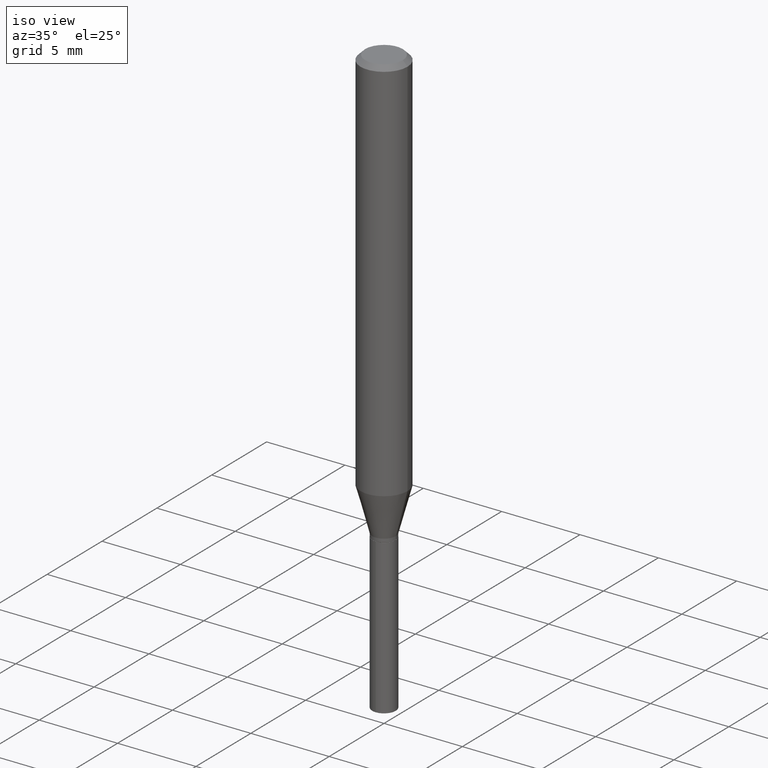
[diagram: clean part render]
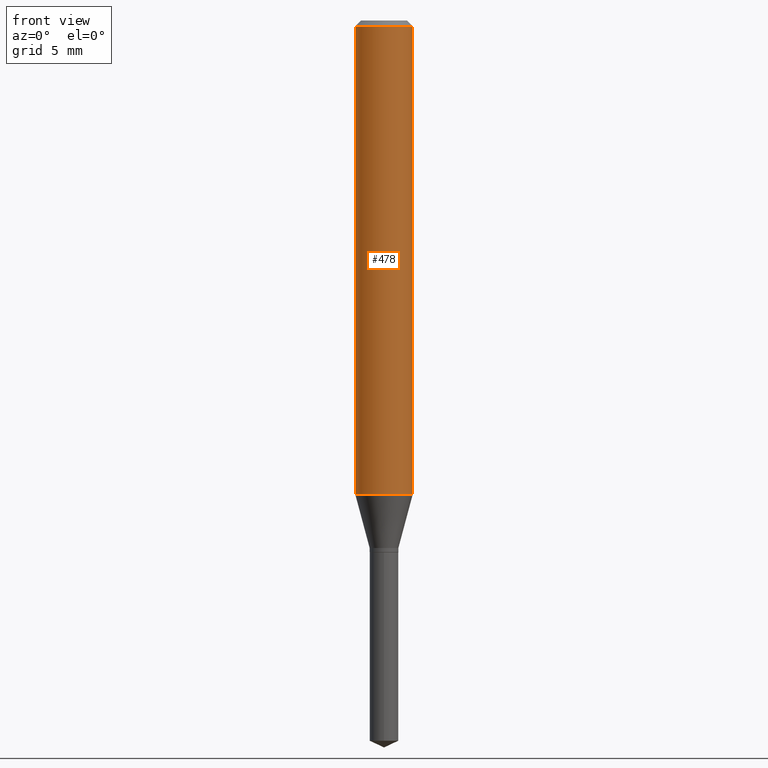
[diagram: tour spotlight — one face highlighted and labeled with its STEP entity id]
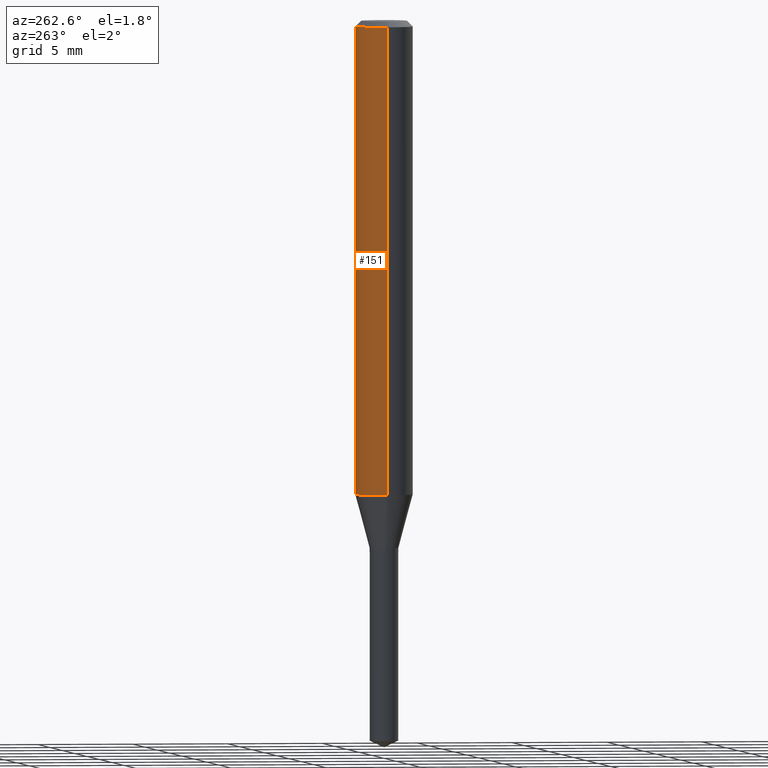
[diagram: tour spotlight — one face highlighted and labeled with its STEP entity id]
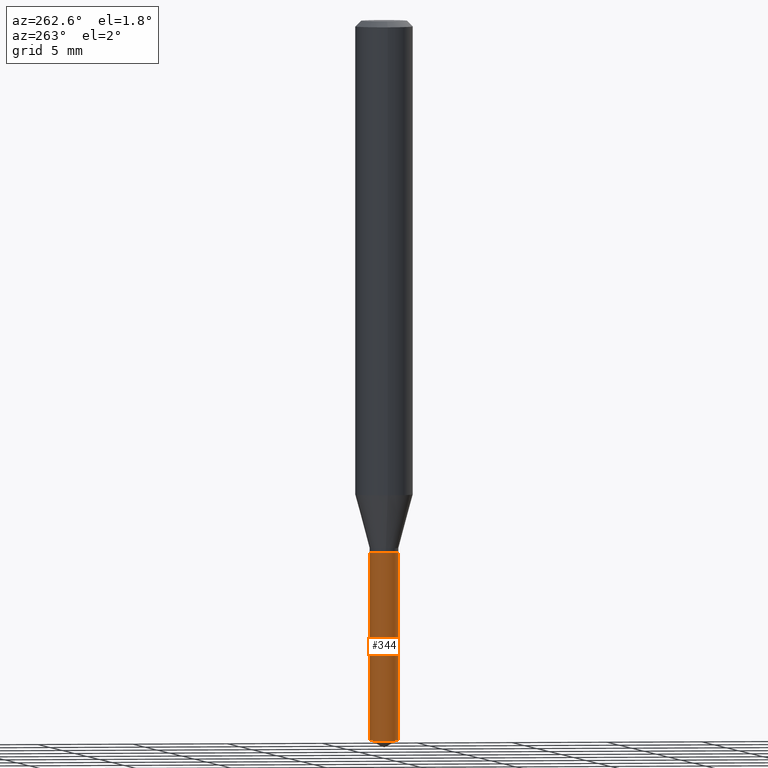
[diagram: tour spotlight — one face highlighted and labeled with its STEP entity id]
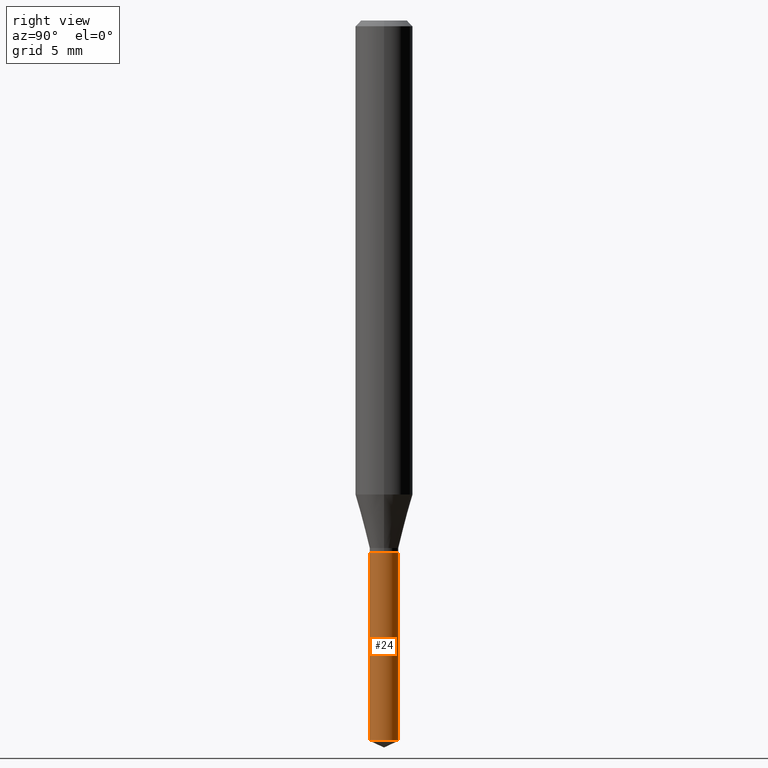
[diagram: tour spotlight — one face highlighted and labeled with its STEP entity id]
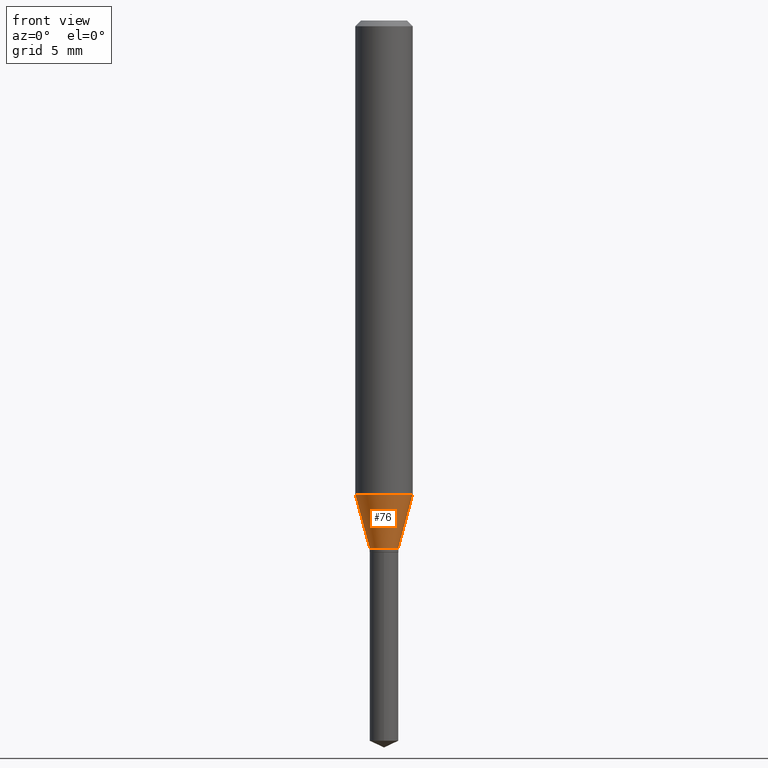
[diagram: tour spotlight — one face highlighted and labeled with its STEP entity id]
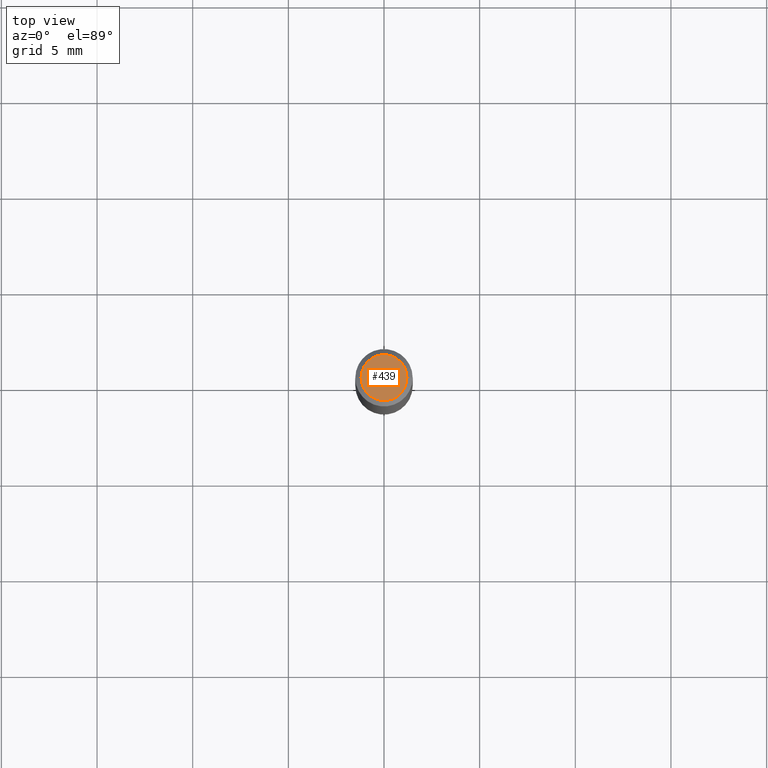
[diagram: tour spotlight — one face highlighted and labeled with its STEP entity id]
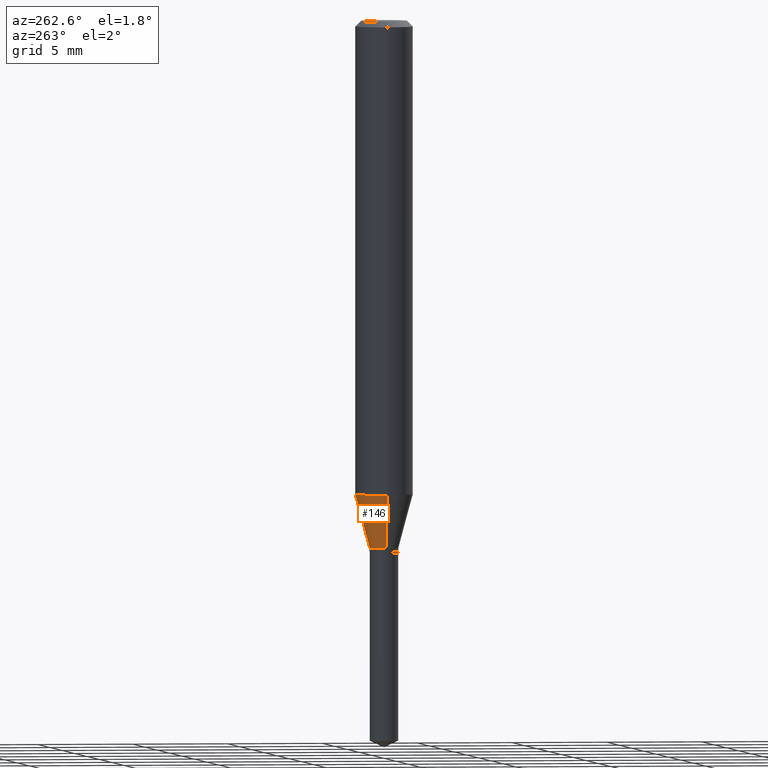
[diagram: tour spotlight — one face highlighted and labeled with its STEP entity id]
A machine part: a face-by-face anatomy tour. The part has 17 B-rep faces; the first image is the clean iso view, then the 7 largest visible faces are spotlighted one at a time (largest first), each with its STEP entity span.

Face 1 — front view, entity #478. In plain terms, the highlighted cylindrical surface (edge-blend (fillet) strip) has radius 1.4999 mm, axis along (-0, 0, 1).
Definition (entity closure, byte-faithful):
#11 = DIRECTION ( 'NONE',  ( -2.445468806185136597E-29, 3.491481338843145583E-15, 1.000000000000000000 ) ) ;
#17 = ORIENTED_EDGE ( 'NONE', *, *, #449, .T. ) ;
#22 = LINE ( 'NONE', #113, #148 ) ;
#41 = CARTESIAN_POINT ( 'NONE',  ( -0.05904999999999999832, -1.304019592747529476E-15, -0.01181000000000007565 ) ) ;
#45 = FACE_OUTER_BOUND ( 'NONE', #212, .T. ) ;
#47 = AXIS2_PLACEMENT_3D ( 'NONE', #193, #489, #158 ) ;
#48 = CARTESIAN_POINT ( 'NONE',  ( 0.000000000000000000, 0.000000000000000000, 0.000000000000000000 ) ) ;
#74 = DIRECTION ( 'NONE',  ( -2.445468806185136597E-29, 3.491481338843145583E-15, 1.000000000000000000 ) ) ;
#112 = CARTESIAN_POINT ( 'NONE',  ( 0.05905000000000011628, -3.818299707933375918E-15, -0.9755045011767178309 ) ) ;
#113 = CARTESIAN_POINT ( 'NONE',  ( 0.05905000000000006077, -4.123439461173744764E-16, 2.879382386107503023E-30 ) ) ;
#140 = CIRCLE ( 'NONE', #47, 0.05905000000000011628 ) ;
#148 = VECTOR ( 'NONE', #227, 39.37007874015748143 ) ;
#158 = DIRECTION ( 'NONE',  ( 1.000000000000000000, -6.982962677686266711E-15, 0.000000000000000000 ) ) ;
#174 = CYLINDRICAL_SURFACE ( 'NONE', #385, 0.05905000000000006077 ) ;
#193 = CARTESIAN_POINT ( 'NONE',  ( 2.385565827920855262E-29, -3.405955761816001787E-15, -0.9755045011767178309 ) ) ;
#212 = EDGE_LOOP ( 'NONE', ( #437, #17, #363, #293 ) ) ;
#226 = DIRECTION ( 'NONE',  ( 1.000000000000000000, -6.982962677686266711E-15, 0.000000000000000000 ) ) ;
#227 = DIRECTION ( 'NONE',  ( -2.445468806185136877E-29, 3.491481338843145188E-15, 1.000000000000000000 ) ) ;
#248 = VERTEX_POINT ( 'NONE', #364 ) ;
#249 = EDGE_CURVE ( 'NONE', #382, #248, #22, .T. ) ;
#256 = AXIS2_PLACEMENT_3D ( 'NONE', #485, #74, #226 ) ;
#267 = CIRCLE ( 'NONE', #256, 0.05904999999999999832 ) ;
#270 = EDGE_CURVE ( 'NONE', #397, #328, #415, .T. ) ;
#289 = EDGE_CURVE ( 'NONE', #328, #248, #267, .T. ) ;
#293 = ORIENTED_EDGE ( 'NONE', *, *, #289, .F. ) ;
#301 = CARTESIAN_POINT ( 'NONE',  ( -0.05905000000000011628, -2.986380276349661505E-15, -0.9755045011767178309 ) ) ;
#308 = DIRECTION ( 'NONE',  ( -2.445468806185136877E-29, 3.491481338843145188E-15, 1.000000000000000000 ) ) ;
#328 = VERTEX_POINT ( 'NONE', #41 ) ;
#362 = DIRECTION ( 'NONE',  ( 1.000000000000000000, -6.982962677686266711E-15, 4.876176775795935793E-29 ) ) ;
#363 = ORIENTED_EDGE ( 'NONE', *, *, #249, .T. ) ;
#364 = CARTESIAN_POINT ( 'NONE',  ( 0.05904999999999999832, -4.535783407291118600E-16, -0.01181000000000007565 ) ) ;
#378 = VECTOR ( 'NONE', #308, 39.37007874015748143 ) ;
#382 = VERTEX_POINT ( 'NONE', #112 ) ;
#385 = AXIS2_PLACEMENT_3D ( 'NONE', #48, #11, #362 ) ;
#397 = VERTEX_POINT ( 'NONE', #301 ) ;
#415 = LINE ( 'NONE', #418, #378 ) ;
#418 = CARTESIAN_POINT ( 'NONE',  ( -0.05905000000000006077, 4.195754854663395916E-16, -2.904631170795524694E-30 ) ) ;
#437 = ORIENTED_EDGE ( 'NONE', *, *, #270, .F. ) ;
#449 = EDGE_CURVE ( 'NONE', #397, #382, #140, .T. ) ;
#478 = ADVANCED_FACE ( 'NONE', ( #45 ), #174, .T. ) ;
#485 = CARTESIAN_POINT ( 'NONE',  ( 2.888098660104664642E-31, -4.123439461173780879E-17, -0.01181000000000007565 ) ) ;
#489 = DIRECTION ( 'NONE',  ( -2.445468806185136597E-29, 3.491481338843145583E-15, 1.000000000000000000 ) ) ;

Face 2 — auxiliary view, entity #151. In plain terms, the highlighted cylindrical surface (edge-blend (fillet) strip) has radius 1.4999 mm, axis along (-0, 0, 1).
Definition (entity closure, byte-faithful):
#22 = LINE ( 'NONE', #113, #148 ) ;
#31 = ORIENTED_EDGE ( 'NONE', *, *, #249, .F. ) ;
#41 = CARTESIAN_POINT ( 'NONE',  ( -0.05904999999999999832, -1.304019592747529476E-15, -0.01181000000000007565 ) ) ;
#54 = DIRECTION ( 'NONE',  ( 1.000000000000000000, -6.982962677686266711E-15, 4.876176775795935793E-29 ) ) ;
#61 = CIRCLE ( 'NONE', #107, 0.05904999999999999832 ) ;
#77 = DIRECTION ( 'NONE',  ( -2.445468806185136597E-29, 3.491481338843145583E-15, 1.000000000000000000 ) ) ;
#88 = FACE_OUTER_BOUND ( 'NONE', #475, .T. ) ;
#107 = AXIS2_PLACEMENT_3D ( 'NONE', #286, #424, #438 ) ;
#112 = CARTESIAN_POINT ( 'NONE',  ( 0.05905000000000011628, -3.818299707933375918E-15, -0.9755045011767178309 ) ) ;
#113 = CARTESIAN_POINT ( 'NONE',  ( 0.05905000000000006077, -4.123439461173744764E-16, 2.879382386107503023E-30 ) ) ;
#148 = VECTOR ( 'NONE', #227, 39.37007874015748143 ) ;
#151 = ADVANCED_FACE ( 'NONE', ( #88 ), #244, .T. ) ;
#159 = ORIENTED_EDGE ( 'NONE', *, *, #181, .F. ) ;
#181 = EDGE_CURVE ( 'NONE', #248, #328, #61, .T. ) ;
#182 = ORIENTED_EDGE ( 'NONE', *, *, #270, .T. ) ;
#202 = DIRECTION ( 'NONE',  ( 1.000000000000000000, -6.982962677686266711E-15, 0.000000000000000000 ) ) ;
#207 = CARTESIAN_POINT ( 'NONE',  ( 0.000000000000000000, 0.000000000000000000, 0.000000000000000000 ) ) ;
#227 = DIRECTION ( 'NONE',  ( -2.445468806185136877E-29, 3.491481338843145188E-15, 1.000000000000000000 ) ) ;
#244 = CYLINDRICAL_SURFACE ( 'NONE', #324, 0.05905000000000006077 ) ;
#248 = VERTEX_POINT ( 'NONE', #364 ) ;
#249 = EDGE_CURVE ( 'NONE', #382, #248, #22, .T. ) ;
#255 = ORIENTED_EDGE ( 'NONE', *, *, #471, .T. ) ;
#261 = CIRCLE ( 'NONE', #327, 0.05905000000000011628 ) ;
#270 = EDGE_CURVE ( 'NONE', #397, #328, #415, .T. ) ;
#286 = CARTESIAN_POINT ( 'NONE',  ( 2.888098660104664642E-31, -4.123439461173780879E-17, -0.01181000000000007565 ) ) ;
#301 = CARTESIAN_POINT ( 'NONE',  ( -0.05905000000000011628, -2.986380276349661505E-15, -0.9755045011767178309 ) ) ;
#308 = DIRECTION ( 'NONE',  ( -2.445468806185136877E-29, 3.491481338843145188E-15, 1.000000000000000000 ) ) ;
#324 = AXIS2_PLACEMENT_3D ( 'NONE', #207, #393, #54 ) ;
#327 = AXIS2_PLACEMENT_3D ( 'NONE', #416, #77, #202 ) ;
#328 = VERTEX_POINT ( 'NONE', #41 ) ;
#364 = CARTESIAN_POINT ( 'NONE',  ( 0.05904999999999999832, -4.535783407291118600E-16, -0.01181000000000007565 ) ) ;
#378 = VECTOR ( 'NONE', #308, 39.37007874015748143 ) ;
#382 = VERTEX_POINT ( 'NONE', #112 ) ;
#393 = DIRECTION ( 'NONE',  ( -2.445468806185136597E-29, 3.491481338843145583E-15, 1.000000000000000000 ) ) ;
#397 = VERTEX_POINT ( 'NONE', #301 ) ;
#415 = LINE ( 'NONE', #418, #378 ) ;
#416 = CARTESIAN_POINT ( 'NONE',  ( 2.385565827920855262E-29, -3.405955761816001787E-15, -0.9755045011767178309 ) ) ;
#418 = CARTESIAN_POINT ( 'NONE',  ( -0.05905000000000006077, 4.195754854663395916E-16, -2.904631170795524694E-30 ) ) ;
#424 = DIRECTION ( 'NONE',  ( -2.445468806185136597E-29, 3.491481338843145583E-15, 1.000000000000000000 ) ) ;
#438 = DIRECTION ( 'NONE',  ( 1.000000000000000000, -6.982962677686266711E-15, 0.000000000000000000 ) ) ;
#471 = EDGE_CURVE ( 'NONE', #382, #397, #261, .T. ) ;
#475 = EDGE_LOOP ( 'NONE', ( #255, #182, #159, #31 ) ) ;

Face 3 — auxiliary view, entity #344. In plain terms, the highlighted cylindrical surface (edge-blend (fillet) strip) has radius 0.7506 mm, axis along (-0, 0, 1).
Definition (entity closure, byte-faithful):
#14 = CARTESIAN_POINT ( 'NONE',  ( 2.676565608369631794E-29, -3.821426325363822773E-15, -1.094499999999999806 ) ) ;
#33 = ORIENTED_EDGE ( 'NONE', *, *, #394, .T. ) ;
#35 = CARTESIAN_POINT ( 'NONE',  ( 3.624943183911285064E-29, -5.175531440543460128E-15, -1.482320608701520159 ) ) ;
#52 = DIRECTION ( 'NONE',  ( -2.445402730703145379E-29, 3.491575962694140016E-15, 1.000000000000000000 ) ) ;
#56 = VECTOR ( 'NONE', #161, 39.37007874015748143 ) ;
#71 = DIRECTION ( 'NONE',  ( -2.445402730703145379E-29, 3.491575962694140016E-15, 1.000000000000000000 ) ) ;
#72 = DIRECTION ( 'NONE',  ( -6.982962677686265922E-15, -1.000000000000000000, 0.000000000000000000 ) ) ;
#95 = CARTESIAN_POINT ( 'NONE',  ( 2.099653784171458177E-16, 0.02954999999999482693, -1.482320608701520159 ) ) ;
#96 = CIRCLE ( 'NONE', #163, 0.02954999999999999988 ) ;
#103 = AXIS2_PLACEMENT_3D ( 'NONE', #14, #398, #169 ) ;
#120 = CARTESIAN_POINT ( 'NONE',  ( -2.063465471255929284E-16, -0.02955000000000517282, -1.482320608701520159 ) ) ;
#128 = CIRCLE ( 'NONE', #103, 0.02954999999999999988 ) ;
#150 = ORIENTED_EDGE ( 'NONE', *, *, #186, .T. ) ;
#154 = CARTESIAN_POINT ( 'NONE',  ( 2.099653784171458424E-16, 0.02954999999999618002, -1.094500000000000028 ) ) ;
#157 = FACE_OUTER_BOUND ( 'NONE', #384, .T. ) ;
#161 = DIRECTION ( 'NONE',  ( -2.445402730703145379E-29, 3.491575962694140016E-15, 1.000000000000000000 ) ) ;
#163 = AXIS2_PLACEMENT_3D ( 'NONE', #35, #71, #72 ) ;
#169 = DIRECTION ( 'NONE',  ( -6.982962677686265922E-15, -1.000000000000000000, 4.622416232934455843E-15 ) ) ;
#177 = LINE ( 'NONE', #213, #435 ) ;
#186 = EDGE_CURVE ( 'NONE', #371, #251, #177, .T. ) ;
#188 = LINE ( 'NONE', #195, #56 ) ;
#189 = AXIS2_PLACEMENT_3D ( 'NONE', #309, #487, #455 ) ;
#195 = CARTESIAN_POINT ( 'NONE',  ( 2.099653784171363267E-16, 0.02954999999999618002, -1.094500000000000028 ) ) ;
#213 = CARTESIAN_POINT ( 'NONE',  ( -2.063465471256024194E-16, -0.02955000000000381974, -1.094499999999999806 ) ) ;
#221 = EDGE_CURVE ( 'NONE', #374, #251, #128, .T. ) ;
#232 = VERTEX_POINT ( 'NONE', #95 ) ;
#251 = VERTEX_POINT ( 'NONE', #348 ) ;
#260 = ORIENTED_EDGE ( 'NONE', *, *, #340, .F. ) ;
#309 = CARTESIAN_POINT ( 'NONE',  ( 2.676565608369631794E-29, -3.821426325363822773E-15, -1.094499999999999806 ) ) ;
#340 = EDGE_CURVE ( 'NONE', #232, #374, #188, .T. ) ;
#344 = ADVANCED_FACE ( 'NONE', ( #157 ), #383, .T. ) ;
#348 = CARTESIAN_POINT ( 'NONE',  ( -2.063465471256024194E-16, -0.02955000000000381974, -1.094499999999999806 ) ) ;
#371 = VERTEX_POINT ( 'NONE', #120 ) ;
#374 = VERTEX_POINT ( 'NONE', #154 ) ;
#383 = CYLINDRICAL_SURFACE ( 'NONE', #189, 0.02954999999999999988 ) ;
#384 = EDGE_LOOP ( 'NONE', ( #260, #33, #150, #472 ) ) ;
#394 = EDGE_CURVE ( 'NONE', #232, #371, #96, .T. ) ;
#398 = DIRECTION ( 'NONE',  ( -2.445402730703145379E-29, 3.491575962694140016E-15, 1.000000000000000000 ) ) ;
#435 = VECTOR ( 'NONE', #52, 39.37007874015748143 ) ;
#455 = DIRECTION ( 'NONE',  ( -6.982962677686265922E-15, -1.000000000000000000, 4.622416232934455843E-15 ) ) ;
#472 = ORIENTED_EDGE ( 'NONE', *, *, #221, .F. ) ;
#487 = DIRECTION ( 'NONE',  ( -2.445402730703145379E-29, 3.491575962694140016E-15, 1.000000000000000000 ) ) ;

Face 4 — right view, entity #24. In plain terms, the highlighted cylindrical surface (edge-blend (fillet) strip) has radius 0.7506 mm, axis along (-0, 0, 1).
Definition (entity closure, byte-faithful):
#3 = ORIENTED_EDGE ( 'NONE', *, *, #186, .F. ) ;
#20 = CARTESIAN_POINT ( 'NONE',  ( 2.676565608369631794E-29, -3.821426325363822773E-15, -1.094499999999999806 ) ) ;
#24 = ADVANCED_FACE ( 'NONE', ( #66 ), #42, .T. ) ;
#29 = CIRCLE ( 'NONE', #352, 0.02954999999999999988 ) ;
#37 = EDGE_CURVE ( 'NONE', #371, #232, #29, .T. ) ;
#42 = CYLINDRICAL_SURFACE ( 'NONE', #409, 0.02954999999999999988 ) ;
#52 = DIRECTION ( 'NONE',  ( -2.445402730703145379E-29, 3.491575962694140016E-15, 1.000000000000000000 ) ) ;
#56 = VECTOR ( 'NONE', #161, 39.37007874015748143 ) ;
#66 = FACE_OUTER_BOUND ( 'NONE', #121, .T. ) ;
#70 = EDGE_CURVE ( 'NONE', #251, #374, #300, .T. ) ;
#95 = CARTESIAN_POINT ( 'NONE',  ( 2.099653784171458177E-16, 0.02954999999999482693, -1.482320608701520159 ) ) ;
#98 = DIRECTION ( 'NONE',  ( -6.982962677686265922E-15, -1.000000000000000000, 4.622416232934455843E-15 ) ) ;
#120 = CARTESIAN_POINT ( 'NONE',  ( -2.063465471255929284E-16, -0.02955000000000517282, -1.482320608701520159 ) ) ;
#121 = EDGE_LOOP ( 'NONE', ( #468, #215, #477, #3 ) ) ;
#154 = CARTESIAN_POINT ( 'NONE',  ( 2.099653784171458424E-16, 0.02954999999999618002, -1.094500000000000028 ) ) ;
#161 = DIRECTION ( 'NONE',  ( -2.445402730703145379E-29, 3.491575962694140016E-15, 1.000000000000000000 ) ) ;
#177 = LINE ( 'NONE', #213, #435 ) ;
#186 = EDGE_CURVE ( 'NONE', #371, #251, #177, .T. ) ;
#188 = LINE ( 'NONE', #195, #56 ) ;
#194 = CARTESIAN_POINT ( 'NONE',  ( 3.624943183911285064E-29, -5.175531440543460128E-15, -1.482320608701520159 ) ) ;
#195 = CARTESIAN_POINT ( 'NONE',  ( 2.099653784171363267E-16, 0.02954999999999618002, -1.094500000000000028 ) ) ;
#196 = CARTESIAN_POINT ( 'NONE',  ( 2.676565608369631794E-29, -3.821426325363822773E-15, -1.094499999999999806 ) ) ;
#211 = DIRECTION ( 'NONE',  ( -2.445402730703145379E-29, 3.491575962694140016E-15, 1.000000000000000000 ) ) ;
#213 = CARTESIAN_POINT ( 'NONE',  ( -2.063465471256024194E-16, -0.02955000000000381974, -1.094499999999999806 ) ) ;
#215 = ORIENTED_EDGE ( 'NONE', *, *, #340, .T. ) ;
#222 = DIRECTION ( 'NONE',  ( -6.982962677686265922E-15, -1.000000000000000000, 4.622416232934455843E-15 ) ) ;
#232 = VERTEX_POINT ( 'NONE', #95 ) ;
#251 = VERTEX_POINT ( 'NONE', #348 ) ;
#300 = CIRCLE ( 'NONE', #470, 0.02954999999999999988 ) ;
#340 = EDGE_CURVE ( 'NONE', #232, #374, #188, .T. ) ;
#347 = DIRECTION ( 'NONE',  ( -2.445402730703145379E-29, 3.491575962694140016E-15, 1.000000000000000000 ) ) ;
#348 = CARTESIAN_POINT ( 'NONE',  ( -2.063465471256024194E-16, -0.02955000000000381974, -1.094499999999999806 ) ) ;
#350 = DIRECTION ( 'NONE',  ( -2.445402730703145379E-29, 3.491575962694140016E-15, 1.000000000000000000 ) ) ;
#352 = AXIS2_PLACEMENT_3D ( 'NONE', #194, #347, #430 ) ;
#371 = VERTEX_POINT ( 'NONE', #120 ) ;
#374 = VERTEX_POINT ( 'NONE', #154 ) ;
#409 = AXIS2_PLACEMENT_3D ( 'NONE', #196, #350, #222 ) ;
#430 = DIRECTION ( 'NONE',  ( -6.982962677686265922E-15, -1.000000000000000000, 0.000000000000000000 ) ) ;
#435 = VECTOR ( 'NONE', #52, 39.37007874015748143 ) ;
#468 = ORIENTED_EDGE ( 'NONE', *, *, #37, .T. ) ;
#470 = AXIS2_PLACEMENT_3D ( 'NONE', #20, #211, #98 ) ;
#477 = ORIENTED_EDGE ( 'NONE', *, *, #70, .F. ) ;

Face 5 — front view, entity #76. In plain terms, the highlighted conical surface has half-angle 15 deg.
Definition (entity closure, byte-faithful):
#9 = CARTESIAN_POINT ( 'NONE',  ( 0.02954999999999998600, -3.996698688573748043E-15, -1.085600000000000120 ) ) ;
#12 = DIRECTION ( 'NONE',  ( 0.2588190451025211281, 1.565188264969622954E-15, 0.9659258262890679791 ) ) ;
#39 = DIRECTION ( 'NONE',  ( -2.445468806185136597E-29, 3.491481338843145583E-15, 1.000000000000000000 ) ) ;
#40 = ORIENTED_EDGE ( 'NONE', *, *, #449, .F. ) ;
#47 = AXIS2_PLACEMENT_3D ( 'NONE', #193, #489, #158 ) ;
#50 = FACE_OUTER_BOUND ( 'NONE', #420, .T. ) ;
#62 = EDGE_CURVE ( 'NONE', #257, #397, #123, .T. ) ;
#73 = CARTESIAN_POINT ( 'NONE',  ( -0.02954999999999998600, -3.595050984654150493E-15, -1.085600000000000120 ) ) ;
#76 = ADVANCED_FACE ( 'NONE', ( #50 ), #179, .T. ) ;
#83 = AXIS2_PLACEMENT_3D ( 'NONE', #467, #175, #281 ) ;
#94 = EDGE_CURVE ( 'NONE', #237, #382, #353, .T. ) ;
#112 = CARTESIAN_POINT ( 'NONE',  ( 0.05905000000000011628, -3.818299707933375918E-15, -0.9755045011767178309 ) ) ;
#123 = LINE ( 'NONE', #277, #262 ) ;
#140 = CIRCLE ( 'NONE', #47, 0.05905000000000011628 ) ;
#158 = DIRECTION ( 'NONE',  ( 1.000000000000000000, -6.982962677686266711E-15, 0.000000000000000000 ) ) ;
#175 = DIRECTION ( 'NONE',  ( -2.445468806185136597E-29, 3.491481338843145583E-15, 1.000000000000000000 ) ) ;
#179 = CONICAL_SURFACE ( 'NONE', #83, 0.02954999999999998600, 0.2617993877991498519 ) ;
#183 = ORIENTED_EDGE ( 'NONE', *, *, #405, .T. ) ;
#190 = DIRECTION ( 'NONE',  ( 1.000000000000000000, -6.982962677686265133E-15, 0.000000000000000000 ) ) ;
#193 = CARTESIAN_POINT ( 'NONE',  ( 2.385565827920855262E-29, -3.405955761816001787E-15, -0.9755045011767178309 ) ) ;
#225 = AXIS2_PLACEMENT_3D ( 'NONE', #303, #39, #190 ) ;
#237 = VERTEX_POINT ( 'NONE', #366 ) ;
#257 = VERTEX_POINT ( 'NONE', #73 ) ;
#259 = ORIENTED_EDGE ( 'NONE', *, *, #94, .T. ) ;
#262 = VECTOR ( 'NONE', #322, 39.37007874015748854 ) ;
#277 = CARTESIAN_POINT ( 'NONE',  ( -0.02954999999999998600, -3.580386763031009075E-15, -1.085600000000000120 ) ) ;
#281 = DIRECTION ( 'NONE',  ( 1.000000000000000000, -6.982962677686265133E-15, 0.000000000000000000 ) ) ;
#301 = CARTESIAN_POINT ( 'NONE',  ( -0.05905000000000011628, -2.986380276349661505E-15, -0.9755045011767178309 ) ) ;
#303 = CARTESIAN_POINT ( 'NONE',  ( 2.654800935994584637E-29, -3.790352141448118432E-15, -1.085600000000000120 ) ) ;
#322 = DIRECTION ( 'NONE',  ( -0.2588190451025211281, 5.211531920934547886E-15, 0.9659258262890679791 ) ) ;
#351 = CIRCLE ( 'NONE', #225, 0.02954999999999998600 ) ;
#353 = LINE ( 'NONE', #9, #367 ) ;
#366 = CARTESIAN_POINT ( 'NONE',  ( 0.02954999999999998600, -3.996698688573748043E-15, -1.085600000000000120 ) ) ;
#367 = VECTOR ( 'NONE', #12, 39.37007874015748854 ) ;
#382 = VERTEX_POINT ( 'NONE', #112 ) ;
#397 = VERTEX_POINT ( 'NONE', #301 ) ;
#405 = EDGE_CURVE ( 'NONE', #257, #237, #351, .T. ) ;
#420 = EDGE_LOOP ( 'NONE', ( #442, #183, #259, #40 ) ) ;
#442 = ORIENTED_EDGE ( 'NONE', *, *, #62, .F. ) ;
#449 = EDGE_CURVE ( 'NONE', #397, #382, #140, .T. ) ;
#467 = CARTESIAN_POINT ( 'NONE',  ( 2.654800935994584637E-29, -3.790352141448118432E-15, -1.085600000000000120 ) ) ;
#489 = DIRECTION ( 'NONE',  ( -2.445468806185136597E-29, 3.491481338843145583E-15, 1.000000000000000000 ) ) ;

Face 6 — top view, entity #439. In plain terms, the highlighted planar face has unit normal (0, -0, -1).
Definition (entity closure, byte-faithful):
#10 = CARTESIAN_POINT ( 'NONE',  ( 0.04724000000000000421, -3.852183633974369345E-16, -3.380025165621689721E-19 ) ) ;
#23 = AXIS2_PLACEMENT_3D ( 'NONE', #85, #241, #390 ) ;
#43 = CIRCLE ( 'NONE', #23, 0.04724000000000000421 ) ;
#67 = AXIS2_PLACEMENT_3D ( 'NONE', #413, #231, #379 ) ;
#85 = CARTESIAN_POINT ( 'NONE',  ( 8.265746106709734507E-48, -1.180129479067563789E-33, -3.380025165646692144E-19 ) ) ;
#115 = PLANE ( 'NONE',  #67 ) ;
#138 = EDGE_CURVE ( 'NONE', #220, #162, #43, .T. ) ;
#162 = VERTEX_POINT ( 'NONE', #10 ) ;
#216 = CARTESIAN_POINT ( 'NONE',  ( -0.04724000000000000421, 3.504923541997677355E-16, -3.380025165670481712E-19 ) ) ;
#220 = VERTEX_POINT ( 'NONE', #216 ) ;
#231 = DIRECTION ( 'NONE',  ( 2.438088387897960049E-29, -3.491481338843145188E-15, -1.000000000000000000 ) ) ;
#241 = DIRECTION ( 'NONE',  ( -2.445468806185136597E-29, 3.491481338843145583E-15, 1.000000000000000000 ) ) ;
#268 = DIRECTION ( 'NONE',  ( -2.445468806185136597E-29, 3.491481338843145583E-15, 1.000000000000000000 ) ) ;
#291 = EDGE_LOOP ( 'NONE', ( #305, #332 ) ) ;
#298 = CARTESIAN_POINT ( 'NONE',  ( 8.265746106709734507E-48, -1.180129479067563789E-33, -3.380025165646692144E-19 ) ) ;
#299 = AXIS2_PLACEMENT_3D ( 'NONE', #298, #268, #446 ) ;
#305 = ORIENTED_EDGE ( 'NONE', *, *, #138, .T. ) ;
#307 = CIRCLE ( 'NONE', #299, 0.04724000000000000421 ) ;
#332 = ORIENTED_EDGE ( 'NONE', *, *, #386, .T. ) ;
#379 = DIRECTION ( 'NONE',  ( -1.000000000000000000, 6.982962677686265922E-15, -4.876176775795935793E-29 ) ) ;
#386 = EDGE_CURVE ( 'NONE', #162, #220, #307, .T. ) ;
#390 = DIRECTION ( 'NONE',  ( 1.000000000000000000, -6.982962677686266711E-15, 4.876185090822587894E-29 ) ) ;
#413 = CARTESIAN_POINT ( 'NONE',  ( 4.132873053354867254E-48, -5.900647395337818946E-34, -1.690012582823346072E-19 ) ) ;
#439 = ADVANCED_FACE ( 'NONE', ( #450 ), #115, .F. ) ;
#446 = DIRECTION ( 'NONE',  ( 1.000000000000000000, -6.982962677686266711E-15, 4.876185090822587894E-29 ) ) ;
#450 = FACE_OUTER_BOUND ( 'NONE', #291, .T. ) ;

Face 7 — auxiliary view, entity #146. In plain terms, the highlighted conical surface has half-angle 15 deg.
Definition (entity closure, byte-faithful):
#9 = CARTESIAN_POINT ( 'NONE',  ( 0.02954999999999998600, -3.996698688573748043E-15, -1.085600000000000120 ) ) ;
#12 = DIRECTION ( 'NONE',  ( 0.2588190451025211281, 1.565188264969622954E-15, 0.9659258262890679791 ) ) ;
#55 = DIRECTION ( 'NONE',  ( 1.000000000000000000, -6.982962677686265133E-15, 0.000000000000000000 ) ) ;
#62 = EDGE_CURVE ( 'NONE', #257, #397, #123, .T. ) ;
#73 = CARTESIAN_POINT ( 'NONE',  ( -0.02954999999999998600, -3.595050984654150493E-15, -1.085600000000000120 ) ) ;
#75 = AXIS2_PLACEMENT_3D ( 'NONE', #90, #132, #55 ) ;
#77 = DIRECTION ( 'NONE',  ( -2.445468806185136597E-29, 3.491481338843145583E-15, 1.000000000000000000 ) ) ;
#90 = CARTESIAN_POINT ( 'NONE',  ( 2.654800935994584637E-29, -3.790352141448118432E-15, -1.085600000000000120 ) ) ;
#94 = EDGE_CURVE ( 'NONE', #237, #382, #353, .T. ) ;
#112 = CARTESIAN_POINT ( 'NONE',  ( 0.05905000000000011628, -3.818299707933375918E-15, -0.9755045011767178309 ) ) ;
#118 = ORIENTED_EDGE ( 'NONE', *, *, #471, .F. ) ;
#123 = LINE ( 'NONE', #277, #262 ) ;
#131 = DIRECTION ( 'NONE',  ( 1.000000000000000000, -6.982962677686265133E-15, 0.000000000000000000 ) ) ;
#132 = DIRECTION ( 'NONE',  ( -2.445468806185136597E-29, 3.491481338843145583E-15, 1.000000000000000000 ) ) ;
#146 = ADVANCED_FACE ( 'NONE', ( #356 ), #484, .T. ) ;
#167 = DIRECTION ( 'NONE',  ( -2.445468806185136597E-29, 3.491481338843145583E-15, 1.000000000000000000 ) ) ;
#202 = DIRECTION ( 'NONE',  ( 1.000000000000000000, -6.982962677686266711E-15, 0.000000000000000000 ) ) ;
#224 = EDGE_CURVE ( 'NONE', #237, #257, #333, .T. ) ;
#234 = ORIENTED_EDGE ( 'NONE', *, *, #224, .T. ) ;
#237 = VERTEX_POINT ( 'NONE', #366 ) ;
#257 = VERTEX_POINT ( 'NONE', #73 ) ;
#261 = CIRCLE ( 'NONE', #327, 0.05905000000000011628 ) ;
#262 = VECTOR ( 'NONE', #322, 39.37007874015748854 ) ;
#275 = AXIS2_PLACEMENT_3D ( 'NONE', #359, #167, #131 ) ;
#277 = CARTESIAN_POINT ( 'NONE',  ( -0.02954999999999998600, -3.580386763031009075E-15, -1.085600000000000120 ) ) ;
#285 = ORIENTED_EDGE ( 'NONE', *, *, #94, .F. ) ;
#301 = CARTESIAN_POINT ( 'NONE',  ( -0.05905000000000011628, -2.986380276349661505E-15, -0.9755045011767178309 ) ) ;
#322 = DIRECTION ( 'NONE',  ( -0.2588190451025211281, 5.211531920934547886E-15, 0.9659258262890679791 ) ) ;
#327 = AXIS2_PLACEMENT_3D ( 'NONE', #416, #77, #202 ) ;
#330 = ORIENTED_EDGE ( 'NONE', *, *, #62, .T. ) ;
#333 = CIRCLE ( 'NONE', #75, 0.02954999999999998600 ) ;
#353 = LINE ( 'NONE', #9, #367 ) ;
#356 = FACE_OUTER_BOUND ( 'NONE', #360, .T. ) ;
#359 = CARTESIAN_POINT ( 'NONE',  ( 2.654800935994584637E-29, -3.790352141448118432E-15, -1.085600000000000120 ) ) ;
#360 = EDGE_LOOP ( 'NONE', ( #234, #330, #118, #285 ) ) ;
#366 = CARTESIAN_POINT ( 'NONE',  ( 0.02954999999999998600, -3.996698688573748043E-15, -1.085600000000000120 ) ) ;
#367 = VECTOR ( 'NONE', #12, 39.37007874015748854 ) ;
#382 = VERTEX_POINT ( 'NONE', #112 ) ;
#397 = VERTEX_POINT ( 'NONE', #301 ) ;
#416 = CARTESIAN_POINT ( 'NONE',  ( 2.385565827920855262E-29, -3.405955761816001787E-15, -0.9755045011767178309 ) ) ;
#471 = EDGE_CURVE ( 'NONE', #382, #397, #261, .T. ) ;
#484 = CONICAL_SURFACE ( 'NONE', #275, 0.02954999999999998600, 0.2617993877991498519 ) ;